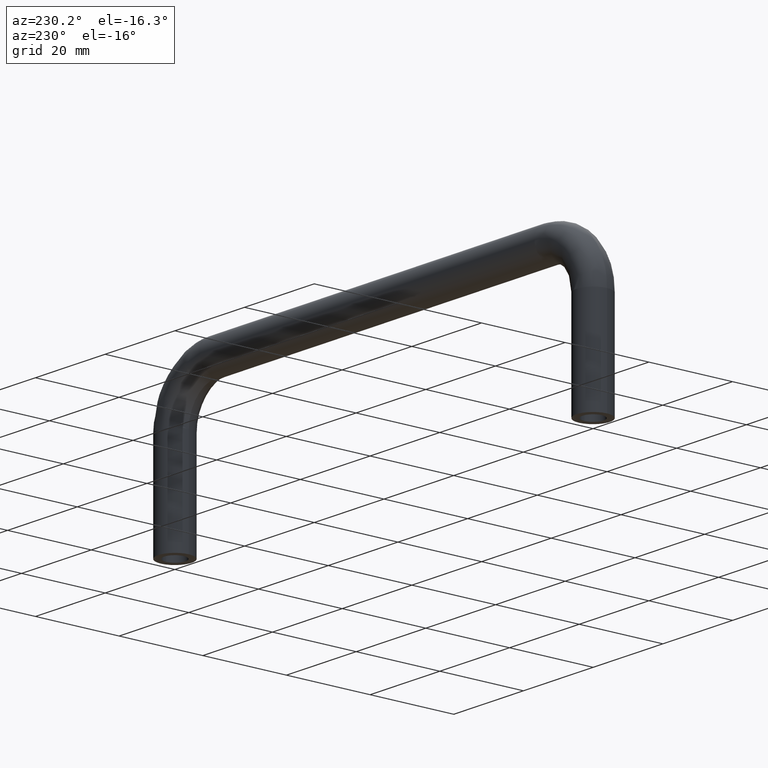
[diagram: clean part render]
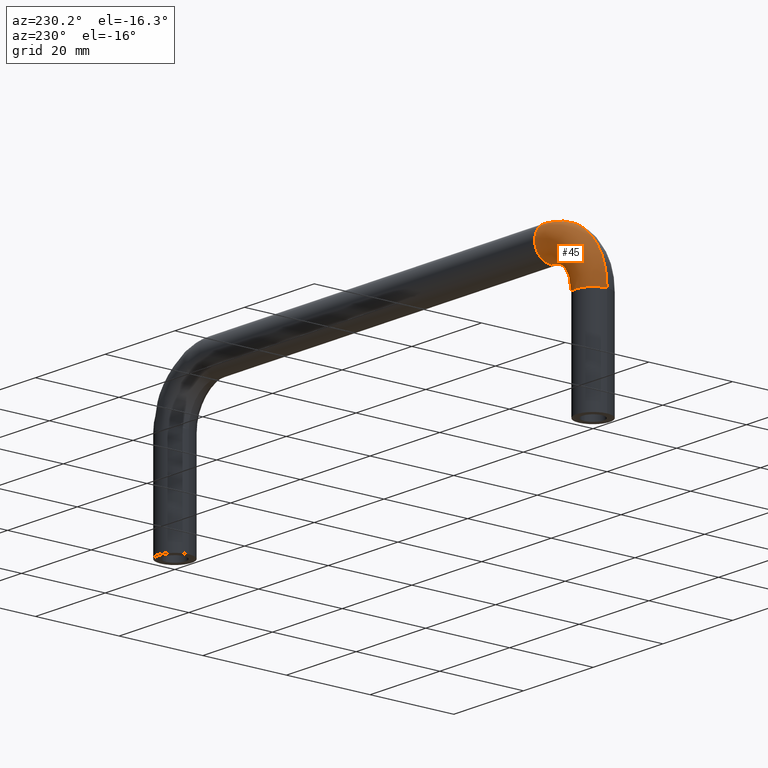
[diagram: same view with one face highlighted and labeled with its STEP entity id]
A machine part, auxiliary view. The second image highlights one B-rep face of the part: STEP entity #45.
In plain terms, the highlighted face is a freeform B-spline surface patch.
Its self-contained STEP definition (entity closure, byte-faithful):
#45=ADVANCED_FACE('',(#110),#109,.T.);
#109=( BOUNDED_SURFACE() B_SPLINE_SURFACE( 3,3,((#373,#374,#375,#376,#377,#378,#379),(#380,#381,#382,#383,#384,#385,#386),(#387,#388,#389,#390,#391,#392,#393),(#394,#395,#396,#397,#398,#399,#400),(#401,#402,#403,#404,#405,#406,#407),(#408,#409,#410,#411,#412,#413,#414),(#415,#416,#417,#418,#419,#420,#421)), .UNSPECIFIED.,.F.,.F.,.F.) B_SPLINE_SURFACE_WITH_KNOTS((4,1,1,1,4),(4,1,1,1,4),(0.00000000000E+00,2.50000000000E-01,5.00000000000E-01,7.50000000000E-01,1.00000000000E+00),(0.00000000000E+00,2.49559115838E-01,5.00000000000E-01,7.50440884162E-01,1.00000000000E+00), .UNSPECIFIED. ) GEOMETRIC_REPRESENTATION_ITEM() RATIONAL_B_SPLINE_SURFACE(((1.00000000000E+00,1.00000000000E+00,1.00000000000E+00,1.00000000000E+00,1.00000000000E+00,1.00000000000E+00,1.00000000000E+00),(1.00000000000E+00,1.00000000000E+00,1.00000000000E+00,1.00000000000E+00,1.00000000000E+00,1.00000000000E+00,1.00000000000E+00),(1.00000000000E+00,1.00000000000E+00,1.00000000000E+00,1.00000000000E+00,1.00000000000E+00,1.00000000000E+00,1.00000000000E+00),(1.00000000000E+00,1.00000000000E+00,1.00000000000E+00,1.00000000000E+00,1.00000000000E+00,1.00000000000E+00,1.00000000000E+00),(1.00000000000E+00,1.00000000000E+00,1.00000000000E+00,1.00000000000E+00,1.00000000000E+00,1.00000000000E+00,1.00000000000E+00),(1.00000000000E+00,1.00000000000E+00,1.00000000000E+00,1.00000000000E+00,1.00000000000E+00,1.00000000000E+00,1.00000000000E+00),(1.00000000000E+00,1.00000000000E+00,1.00000000000E+00,1.00000000000E+00,1.00000000000E+00,1.00000000000E+00,1.00000000000E+00))) REPRESENTATION_ITEM('') SURFACE() );
#110=FACE_OUTER_BOUND('',#422,.T.);
#373=CARTESIAN_POINT('',(-4.79999999995E+01,0.00000000000E+00,8.00000000000E+00));
#374=CARTESIAN_POINT('',(-5.00907017432E+01,0.00000000000E+00,8.00000000000E+00));
#375=CARTESIAN_POINT('',(-5.42782919035E+01,0.00000000000E+00,7.16850722999E+00));
#376=CARTESIAN_POINT('',(-5.96093834802E+01,0.00000000000E+00,3.60938348070E+00));
#377=CARTESIAN_POINT('',(-6.31685072295E+01,0.00000000000E+00,-1.72170809596E+00));
#378=CARTESIAN_POINT('',(-6.39999999995E+01,0.00000000000E+00,-5.90929825625E+00));
#379=CARTESIAN_POINT('',(-6.39999999995E+01,0.00000000000E+00,-7.99999999998E+00));
#380=CARTESIAN_POINT('',(-4.79999999995E+01,1.04653676220E+00,8.00521816571E+00));
#381=CARTESIAN_POINT('',(-5.00736579698E+01,1.04653676220E+00,8.00521816571E+00));
#382=CARTESIAN_POINT('',(-5.42885995893E+01,1.04653676220E+00,7.17408823124E+00));
#383=CARTESIAN_POINT('',(-5.96109422574E+01,1.04653676220E+00,3.61094225795E+00));
#384=CARTESIAN_POINT('',(-6.31740882307E+01,1.04653676220E+00,-1.71140041013E+00));
#385=CARTESIAN_POINT('',(-6.40052181652E+01,1.04653676220E+00,-5.92634202964E+00));
#386=CARTESIAN_POINT('',(-6.40052181652E+01,1.04653676220E+00,-7.99999999998E+00));
#387=CARTESIAN_POINT('',(-4.79999999995E+01,3.13518975623E+00,7.13507883907E+00));
#388=CARTESIAN_POINT('',(-4.99376136524E+01,3.13518975623E+00,7.13507883907E+00));
#389=CARTESIAN_POINT('',(-5.39575751596E+01,3.13518975623E+00,6.34996777780E+00));
#390=CARTESIAN_POINT('',(-5.89767731000E+01,3.13518975623E+00,2.97677310049E+00));
#391=CARTESIAN_POINT('',(-6.23499677773E+01,3.13518975622E+00,-2.04242483985E+00));
#392=CARTESIAN_POINT('',(-6.31350788386E+01,3.13518975622E+00,-6.06238634708E+00));
#393=CARTESIAN_POINT('',(-6.31350788386E+01,3.13518975622E+00,-7.99999999998E+00));
#394=CARTESIAN_POINT('',(-4.79999999995E+01,4.43641415899E+00,4.00000000000E+00));
#395=CARTESIAN_POINT('',(-4.95680263073E+01,4.43641415899E+00,4.00000000000E+00));
#396=CARTESIAN_POINT('',(-5.27087189275E+01,4.43641415899E+00,3.37638042249E+00));
#397=CARTESIAN_POINT('',(-5.67070376100E+01,4.43641415899E+00,7.07037610526E-01));
#398=CARTESIAN_POINT('',(-5.93763804220E+01,4.43641415899E+00,-3.29128107197E+00));
#399=CARTESIAN_POINT('',(-5.99999999995E+01,4.43641415899E+00,-6.43197369219E+00));
#400=CARTESIAN_POINT('',(-5.99999999995E+01,4.43641415899E+00,-7.99999999999E+00));
#401=CARTESIAN_POINT('',(-4.79999999995E+01,3.13518975623E+00,8.64921160933E-01));
#402=CARTESIAN_POINT('',(-4.91984389622E+01,3.13518975623E+00,8.64921160933E-01));
#403=CARTESIAN_POINT('',(-5.14598626954E+01,3.13518975623E+00,4.02793067179E-01));
#404=CARTESIAN_POINT('',(-5.44373021201E+01,3.13518975623E+00,-1.56269787943E+00));
#405=CARTESIAN_POINT('',(-5.64027930667E+01,3.13518975623E+00,-4.54013730409E+00));
#406=CARTESIAN_POINT('',(-5.68649211604E+01,3.13518975622E+00,-6.80156103730E+00));
#407=CARTESIAN_POINT('',(-5.68649211604E+01,3.13518975622E+00,-7.99999999999E+00));
#408=CARTESIAN_POINT('',(-4.79999999995E+01,1.04653676220E+00,-5.21816571469E-03));
#409=CARTESIAN_POINT('',(-4.90623946448E+01,1.04653676220E+00,-5.21816571469E-03));
#410=CARTESIAN_POINT('',(-5.11288382657E+01,1.04653676220E+00,-4.21327386262E-01));
#411=CARTESIAN_POINT('',(-5.38031329626E+01,1.04653676220E+00,-2.19686703690E+00));
#412=CARTESIAN_POINT('',(-5.55786726132E+01,1.04653676220E+00,-4.87116173381E+00));
#413=CARTESIAN_POINT('',(-5.59947818338E+01,1.04653676220E+00,-6.93760535474E+00));
#414=CARTESIAN_POINT('',(-5.59947818338E+01,1.04653676220E+00,-7.99999999999E+00));
#415=CARTESIAN_POINT('',(-4.79999999995E+01,4.89842541529E-16,0.00000000000E+00));
#416=CARTESIAN_POINT('',(-4.90453508714E+01,4.89842541529E-16,-9.28458085404E-16));
#417=CARTESIAN_POINT('',(-5.11391459515E+01,4.89842541529E-16,-4.15746385007E-01));
#418=CARTESIAN_POINT('',(-5.38046917398E+01,4.89842541529E-16,-2.19530825965E+00));
#419=CARTESIAN_POINT('',(-5.55842536145E+01,4.89842541529E-16,-4.86085404798E+00));
#420=CARTESIAN_POINT('',(-5.59999999995E+01,4.89842541529E-16,-6.95464912812E+00));
#421=CARTESIAN_POINT('',(-5.59999999995E+01,4.89842541529E-16,-7.99999999999E+00));
#422=EDGE_LOOP('',(#502,#503,#504,#505));
#502=ORIENTED_EDGE('',*,*,#568,.T.);
#503=ORIENTED_EDGE('',*,*,#565,.T.);
#504=ORIENTED_EDGE('',*,*,#569,.F.);
#505=ORIENTED_EDGE('',*,*,#567,.F.);
#565=EDGE_CURVE('',#676,#668,#677,.T.);
#567=EDGE_CURVE('',#683,#669,#690,.T.);
#568=EDGE_CURVE('',#683,#676,#696,.T.);
#569=EDGE_CURVE('',#669,#668,#702,.T.);
#668=VERTEX_POINT('',#871);
#669=VERTEX_POINT('',#872);
#676=VERTEX_POINT('',#877);
#677=CIRCLE('',#881,8.00000000000E+00);
#683=VERTEX_POINT('',#882);
#690=(BOUNDED_CURVE() B_SPLINE_CURVE(3,(#887,#888,#889,#890,#891,#892,#893),.UNSPECIFIED.,.F.,.F.) B_SPLINE_CURVE_WITH_KNOTS((4,1,1,1,4),(3.14159265359E+00,3.62511044056E+00,3.92699081698E+00,4.22887119341E+00,4.71238898038E+00),.UNSPECIFIED.) CURVE() GEOMETRIC_REPRESENTATION_ITEM() RATIONAL_B_SPLINE_CURVE((1.00000000000E+00,1.00000000000E+00,1.00000000000E+00,1.00000000000E+00,1.00000000000E+00,1.00000000000E+00,1.00000000000E+00)) REPRESENTATION_ITEM('') );
#696=CIRCLE('',#897,4.00000000000E+00);
#702=CIRCLE('',#901,4.00000000000E+00);
#871=CARTESIAN_POINT('',(-5.59999999995E+01,4.44089209850E-16,-8.00000000000E+00));
#872=CARTESIAN_POINT('',(-6.39999999995E+01,0.00000000000E+00,-8.00000000000E+00));
#877=CARTESIAN_POINT('',(-4.79999999995E+01,4.44089209850E-16,-8.88178419700E-16));
#878=CARTESIAN_POINT('',(-4.79999999995E+01,-4.89842541529E-16,-8.00000000000E+00));
#879=DIRECTION('',(0.00000000000E+00,-1.00000000000E+00,0.00000000000E+00));
#880=DIRECTION('',(-2.64677169071E-13,-0.00000000000E+00,-1.00000000000E+00));
#881=AXIS2_PLACEMENT_3D('',#878,#879,#880);
#882=CARTESIAN_POINT('',(-4.79999999995E+01,0.00000000000E+00,8.00000000000E+00));
#887=CARTESIAN_POINT('',(-4.79999999994E+01,0.00000000000E+00,8.00000000000E+00));
#888=CARTESIAN_POINT('',(-5.05800632377E+01,0.00000000000E+00,8.00521291529E+00));
#889=CARTESIAN_POINT('',(-5.47565636451E+01,0.00000000000E+00,6.96696034596E+00));
#890=CARTESIAN_POINT('',(-5.94874213830E+01,0.00000000000E+00,3.48742138358E+00));
#891=CARTESIAN_POINT('',(-6.29669603454E+01,0.00000000000E+00,-1.24343635425E+00));
#892=CARTESIAN_POINT('',(-6.40052129147E+01,0.00000000000E+00,-5.41993676170E+00));
#893=CARTESIAN_POINT('',(-6.39999999995E+01,0.00000000000E+00,-7.99999999996E+00));
#894=CARTESIAN_POINT('',(-4.79999999995E+01,0.00000000000E+00,4.00000000000E+00));
#895=DIRECTION('',(-1.00000000000E+00,-2.73691106313E-48,-9.17343993978E-112));
#896=DIRECTION('',(-0.00000000000E+00,3.35174937299E-64,-1.00000000000E+00));
#897=AXIS2_PLACEMENT_3D('',#894,#895,#896);
#898=CARTESIAN_POINT('',(-5.99999999995E+01,0.00000000000E+00,-8.00000000000E+00));
#899=DIRECTION('',(9.17343993978E-112,-2.73691106313E-48,-1.00000000000E+00));
#900=DIRECTION('',(1.00000000000E+00,3.35174937299E-64,-0.00000000000E+00));
#901=AXIS2_PLACEMENT_3D('',#898,#899,#900);